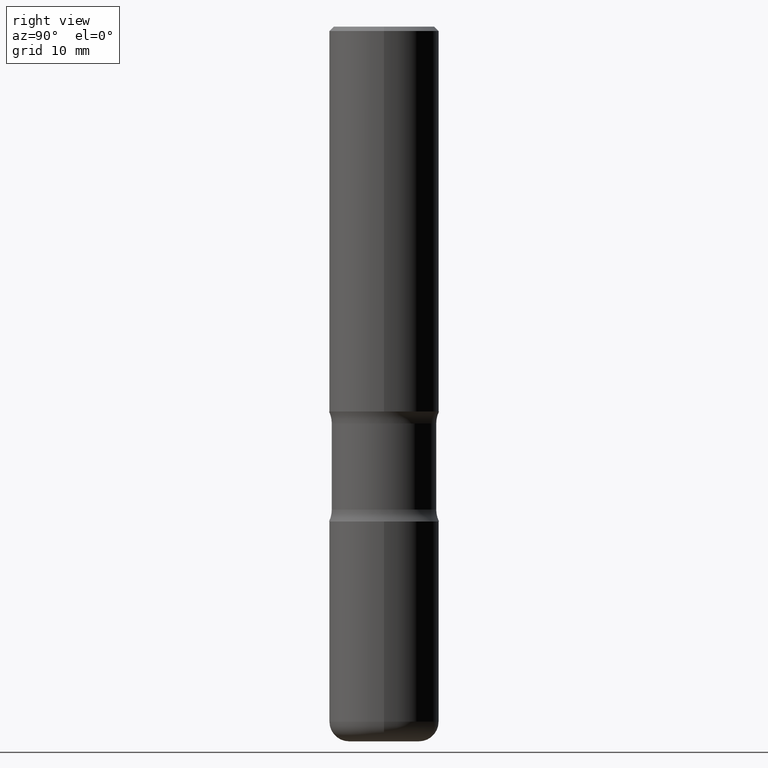
[diagram: clean part render]
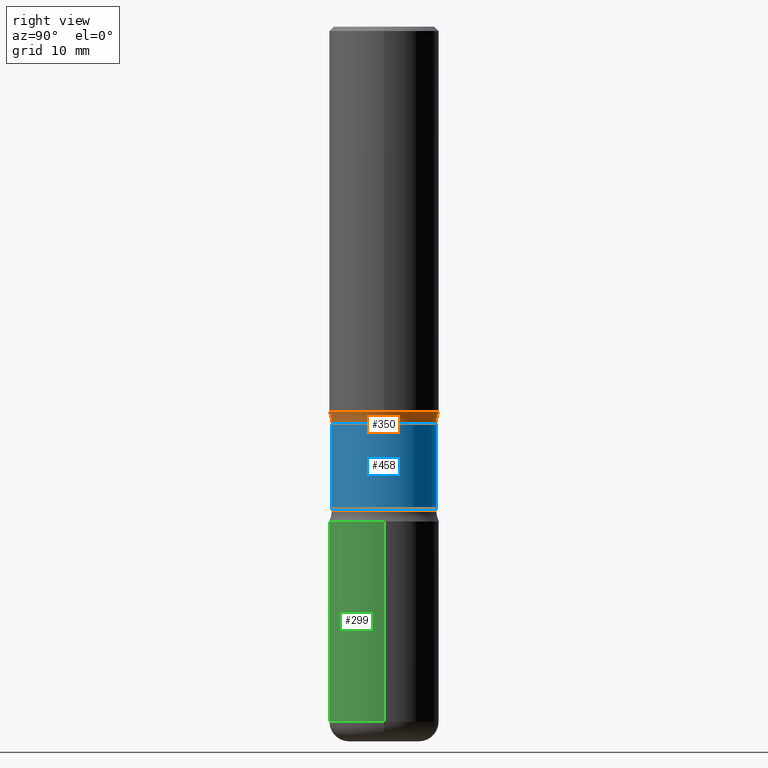
[diagram: same view with three faces highlighted in distinct colors, each labeled with its STEP entity id]
A machine part, right view with three faces highlighted in distinct colors.
Their STEP definitions:

[orange] entity #350 — the highlighted toroidal blend (fillet) surface has major radius 9.2075 mm and minor (blend) radius 3.175 mm.
#3 = TOROIDAL_SURFACE ( 'NONE', #9, 0.3624999999999997113, 0.1250000000000000278 ) ;
#9 = AXIS2_PLACEMENT_3D ( 'NONE', #397, #186, #235 ) ;
#17 = AXIS2_PLACEMENT_3D ( 'NONE', #373, #380, #460 ) ;
#42 = EDGE_LOOP ( 'NONE', ( #183, #495, #270, #410 ) ) ;
#47 = CARTESIAN_POINT ( 'NONE',  ( 1.658453635950530153E-15, 0.2374999999999934108, -1.804486236794262233 ) ) ;
#48 = CIRCLE ( 'NONE', #463, 0.1250000000000000278 ) ;
#68 = VERTEX_POINT ( 'NONE', #155 ) ;
#74 = EDGE_CURVE ( 'NONE', #293, #68, #263, .T. ) ;
#91 = FACE_OUTER_BOUND ( 'NONE', #42, .T. ) ;
#92 = CIRCLE ( 'NONE', #232, 0.2500000000000002220 ) ;
#98 = CIRCLE ( 'NONE', #17, 0.1250000000000000278 ) ;
#106 = DIRECTION ( 'NONE',  ( -1.000000000000000000, 6.982962677686265922E-15, -4.883557194083112340E-29 ) ) ;
#116 = EDGE_CURVE ( 'NONE', #68, #461, #98, .T. ) ;
#118 = DIRECTION ( 'NONE',  ( 2.269921404058617848E-29, -3.742875210225950140E-15, -1.000000000000000000 ) ) ;
#155 = CARTESIAN_POINT ( 'NONE',  ( -1.672246386956765893E-15, -0.2375000000000057621, -1.804486236794260678 ) ) ;
#183 = ORIENTED_EDGE ( 'NONE', *, *, #116, .F. ) ;
#186 = DIRECTION ( 'NONE',  ( 2.269921404058617848E-29, -3.742875210225950140E-15, -1.000000000000000000 ) ) ;
#193 = DIRECTION ( 'NONE',  ( 6.982962677686265133E-15, 1.000000000000000000, -3.278217592397113101E-15 ) ) ;
#228 = CARTESIAN_POINT ( 'NONE',  ( -1.715124499442841278E-15, -0.2500000000000062172, -1.750000000000000444 ) ) ;
#232 = AXIS2_PLACEMENT_3D ( 'NONE', #319, #493, #193 ) ;
#235 = DIRECTION ( 'NONE',  ( 6.982962677686265922E-15, 1.000000000000000000, -3.742875210225950140E-15 ) ) ;
#259 = CARTESIAN_POINT ( 'NONE',  ( 2.531323970661313492E-15, 0.3624999999999934941, -1.804486236794262233 ) ) ;
#263 = CIRCLE ( 'NONE', #349, 0.2374999999999995726 ) ;
#268 = DIRECTION ( 'NONE',  ( -6.982962677686265133E-15, -1.000000000000000000, 0.000000000000000000 ) ) ;
#270 = ORIENTED_EDGE ( 'NONE', *, *, #526, .T. ) ;
#293 = VERTEX_POINT ( 'NONE', #47 ) ;
#319 = CARTESIAN_POINT ( 'NONE',  ( 4.367344111887250941E-29, -5.984395407284106534E-15, -1.750000000000001332 ) ) ;
#329 = CARTESIAN_POINT ( 'NONE',  ( 4.491023587013149728E-29, -6.188330592279845103E-15, -1.804486236794261567 ) ) ;
#336 = DIRECTION ( 'NONE',  ( 6.982962677686266711E-15, 1.000000000000000000, -3.450755360418023049E-15 ) ) ;
#341 = VERTEX_POINT ( 'NONE', #518 ) ;
#349 = AXIS2_PLACEMENT_3D ( 'NONE', #329, #118, #336 ) ;
#350 = ADVANCED_FACE ( 'NONE', ( #91 ), #3, .F. ) ;
#373 = CARTESIAN_POINT ( 'NONE',  ( -2.486930524192133333E-15, -0.3625000000000058731, -1.804486236794259568 ) ) ;
#380 = DIRECTION ( 'NONE',  ( 1.000000000000000000, -6.860497997771530774E-15, 4.837720192625000670E-29 ) ) ;
#397 = CARTESIAN_POINT ( 'NONE',  ( 4.460505784722945109E-29, -6.232033822124849427E-15, -1.804486236794260900 ) ) ;
#410 = ORIENTED_EDGE ( 'NONE', *, *, #484, .T. ) ;
#460 = DIRECTION ( 'NONE',  ( 6.860497997771532351E-15, 1.000000000000000000, 0.000000000000000000 ) ) ;
#461 = VERTEX_POINT ( 'NONE', #228 ) ;
#463 = AXIS2_PLACEMENT_3D ( 'NONE', #259, #106, #268 ) ;
#484 = EDGE_CURVE ( 'NONE', #341, #461, #92, .T. ) ;
#493 = DIRECTION ( 'NONE',  ( 2.269921404058617848E-29, -3.742875210225950140E-15, -1.000000000000000000 ) ) ;
#495 = ORIENTED_EDGE ( 'NONE', *, *, #74, .F. ) ;
#518 = CARTESIAN_POINT ( 'NONE',  ( 1.745740669421611445E-15, 0.2499999999999942546, -1.750000000000001998 ) ) ;
#526 = EDGE_CURVE ( 'NONE', #293, #341, #48, .T. ) ;

[blue] entity #458 — the highlighted cylindrical surface (partial cylindrical patch) has radius 6.0325 mm, axis along (0, -0, -1).
#15 = EDGE_CURVE ( 'NONE', #68, #140, #156, .T. ) ;
#26 = ORIENTED_EDGE ( 'NONE', *, *, #94, .F. ) ;
#47 = CARTESIAN_POINT ( 'NONE',  ( 1.658453635950530153E-15, 0.2374999999999934108, -1.804486236794262233 ) ) ;
#54 = LINE ( 'NONE', #132, #217 ) ;
#68 = VERTEX_POINT ( 'NONE', #155 ) ;
#74 = EDGE_CURVE ( 'NONE', #293, #68, #263, .T. ) ;
#93 = ORIENTED_EDGE ( 'NONE', *, *, #15, .T. ) ;
#94 = EDGE_CURVE ( 'NONE', #120, #140, #337, .T. ) ;
#113 = CARTESIAN_POINT ( 'NONE',  ( -1.629368274470659150E-15, -0.2375000000000113409, -3.250000000000000000 ) ) ;
#118 = DIRECTION ( 'NONE',  ( 2.269921404058617848E-29, -3.742875210225950140E-15, -1.000000000000000000 ) ) ;
#120 = VERTEX_POINT ( 'NONE', #200 ) ;
#124 = AXIS2_PLACEMENT_3D ( 'NONE', #509, #501, #287 ) ;
#132 = CARTESIAN_POINT ( 'NONE',  ( 1.658453635950563680E-15, 0.2374999999999881095, -3.250000000000002220 ) ) ;
#136 = FACE_OUTER_BOUND ( 'NONE', #488, .T. ) ;
#140 = VERTEX_POINT ( 'NONE', #556 ) ;
#155 = CARTESIAN_POINT ( 'NONE',  ( -1.672246386956765893E-15, -0.2375000000000057621, -1.804486236794260678 ) ) ;
#156 = LINE ( 'NONE', #113, #296 ) ;
#179 = DIRECTION ( 'NONE',  ( 6.982962677686265922E-15, 1.000000000000000000, -4.601007147224027577E-15 ) ) ;
#200 = CARTESIAN_POINT ( 'NONE',  ( 1.658453635950540606E-15, 0.2374999999999921618, -2.195513763205742208 ) ) ;
#217 = VECTOR ( 'NONE', #446, 39.37007874015748143 ) ;
#242 = ORIENTED_EDGE ( 'NONE', *, *, #469, .F. ) ;
#257 = AXIS2_PLACEMENT_3D ( 'NONE', #525, #490, #179 ) ;
#263 = CIRCLE ( 'NONE', #349, 0.2374999999999995726 ) ;
#284 = DIRECTION ( 'NONE',  ( 2.269921404058617848E-29, -3.742875210225950140E-15, -1.000000000000000000 ) ) ;
#287 = DIRECTION ( 'NONE',  ( 6.982962677686265133E-15, 1.000000000000000000, -3.450755360418019105E-15 ) ) ;
#293 = VERTEX_POINT ( 'NONE', #47 ) ;
#296 = VECTOR ( 'NONE', #284, 39.37007874015748143 ) ;
#329 = CARTESIAN_POINT ( 'NONE',  ( 4.491023587013149728E-29, -6.188330592279845103E-15, -1.804486236794261567 ) ) ;
#336 = DIRECTION ( 'NONE',  ( 6.982962677686266711E-15, 1.000000000000000000, -3.450755360418023049E-15 ) ) ;
#337 = CIRCLE ( 'NONE', #124, 0.2374999999999998224 ) ;
#343 = ORIENTED_EDGE ( 'NONE', *, *, #74, .T. ) ;
#349 = AXIS2_PLACEMENT_3D ( 'NONE', #329, #118, #336 ) ;
#442 = CYLINDRICAL_SURFACE ( 'NONE', #257, 0.2374999999999997113 ) ;
#446 = DIRECTION ( 'NONE',  ( 2.269921404058617848E-29, -3.742875210225950140E-15, -1.000000000000000000 ) ) ;
#458 = ADVANCED_FACE ( 'NONE', ( #136 ), #442, .T. ) ;
#469 = EDGE_CURVE ( 'NONE', #293, #120, #54, .T. ) ;
#488 = EDGE_LOOP ( 'NONE', ( #343, #93, #26, #242 ) ) ;
#490 = DIRECTION ( 'NONE',  ( 2.269921404058617848E-29, -3.742875210225950140E-15, -1.000000000000000000 ) ) ;
#501 = DIRECTION ( 'NONE',  ( 2.269921404058617848E-29, -3.742875210225950140E-15, -1.000000000000000000 ) ) ;
#509 = CARTESIAN_POINT ( 'NONE',  ( 5.378625338790664161E-29, -7.651897827401345401E-15, -2.195513763205741320 ) ) ;
#525 = CARTESIAN_POINT ( 'NONE',  ( 7.772226217975179114E-29, -1.159870822262303332E-14, -3.250000000000001332 ) ) ;
#556 = CARTESIAN_POINT ( 'NONE',  ( -1.672246386956757412E-15, -0.2375000000000074829, -2.195513763205740432 ) ) ;

[green] entity #299 — the highlighted cylindrical surface (partial cylindrical patch) has radius 6.35 mm, axis along (-0, 0, 1).
#1 = VECTOR ( 'NONE', #81, 39.37007874015748143 ) ;
#64 = DIRECTION ( 'NONE',  ( -2.445468806185136877E-29, 3.491481338843145188E-15, 1.000000000000000000 ) ) ;
#81 = DIRECTION ( 'NONE',  ( -2.445468806185136877E-29, 3.491481338843145188E-15, 1.000000000000000000 ) ) ;
#99 = DIRECTION ( 'NONE',  ( -2.445468806185136597E-29, 3.491481338843145583E-15, 1.000000000000000000 ) ) ;
#108 = EDGE_CURVE ( 'NONE', #233, #327, #377, .T. ) ;
#128 = CYLINDRICAL_SURFACE ( 'NONE', #325, 0.2500000000000003886 ) ;
#172 = DIRECTION ( 'NONE',  ( 1.000000000000000000, -6.982962677686267499E-15, 4.876176775795935793E-29 ) ) ;
#210 = ORIENTED_EDGE ( 'NONE', *, *, #108, .T. ) ;
#218 = CARTESIAN_POINT ( 'NONE',  ( 0.000000000000000000, 0.000000000000000000, 0.000000000000000000 ) ) ;
#221 = FACE_OUTER_BOUND ( 'NONE', #428, .T. ) ;
#233 = VERTEX_POINT ( 'NONE', #477 ) ;
#239 = VERTEX_POINT ( 'NONE', #258 ) ;
#258 = CARTESIAN_POINT ( 'NONE',  ( -0.2500000000000003886, -7.668100182170457762E-15, -2.250000000000001332 ) ) ;
#290 = ORIENTED_EDGE ( 'NONE', *, *, #552, .F. ) ;
#299 = ADVANCED_FACE ( 'NONE', ( #221 ), #128, .T. ) ;
#305 = CIRCLE ( 'NONE', #362, 0.2500000000000003886 ) ;
#309 = DIRECTION ( 'NONE',  ( 1.000000000000000000, -6.982962677686267499E-15, 0.000000000000000000 ) ) ;
#325 = AXIS2_PLACEMENT_3D ( 'NONE', #218, #520, #172 ) ;
#327 = VERTEX_POINT ( 'NONE', #521 ) ;
#340 = CIRCLE ( 'NONE', #481, 0.2500000000000003886 ) ;
#358 = CARTESIAN_POINT ( 'NONE',  ( -0.2500000000000003886, 1.776356839400253226E-15, -1.229733772563728407E-29 ) ) ;
#362 = AXIS2_PLACEMENT_3D ( 'NONE', #366, #99, #500 ) ;
#366 = CARTESIAN_POINT ( 'NONE',  ( 5.502304813916559585E-29, -7.855833012397081604E-15, -2.250000000000001332 ) ) ;
#377 = LINE ( 'NONE', #420, #1 ) ;
#398 = CARTESIAN_POINT ( 'NONE',  ( -0.2500000000000002220, -9.256724191344087541E-15, -3.160000000000000142 ) ) ;
#405 = EDGE_CURVE ( 'NONE', #529, #233, #340, .T. ) ;
#409 = EDGE_CURVE ( 'NONE', #529, #239, #496, .T. ) ;
#420 = CARTESIAN_POINT ( 'NONE',  ( 0.2500000000000003886, -1.745740669421569636E-15, 1.219044193948985910E-29 ) ) ;
#427 = VECTOR ( 'NONE', #64, 39.37007874015748143 ) ;
#428 = EDGE_LOOP ( 'NONE', ( #471, #468, #210, #290 ) ) ;
#448 = DIRECTION ( 'NONE',  ( -2.445468806185136597E-29, 3.491481338843145583E-15, 1.000000000000000000 ) ) ;
#468 = ORIENTED_EDGE ( 'NONE', *, *, #405, .T. ) ;
#471 = ORIENTED_EDGE ( 'NONE', *, *, #409, .F. ) ;
#477 = CARTESIAN_POINT ( 'NONE',  ( 0.2500000000000002220, -1.277882170016590942E-14, -3.160000000000000142 ) ) ;
#481 = AXIS2_PLACEMENT_3D ( 'NONE', #485, #448, #309 ) ;
#485 = CARTESIAN_POINT ( 'NONE',  ( 7.727681427545032274E-29, -1.103308103074433958E-14, -3.160000000000000142 ) ) ;
#496 = LINE ( 'NONE', #358, #427 ) ;
#500 = DIRECTION ( 'NONE',  ( 1.000000000000000000, -6.982962677686263555E-15, 0.000000000000000000 ) ) ;
#520 = DIRECTION ( 'NONE',  ( -2.445468806185136597E-29, 3.491481338843145583E-15, 1.000000000000000000 ) ) ;
#521 = CARTESIAN_POINT ( 'NONE',  ( 0.2500000000000003886, -9.601573681818649859E-15, -2.250000000000001332 ) ) ;
#529 = VERTEX_POINT ( 'NONE', #398 ) ;
#552 = EDGE_CURVE ( 'NONE', #239, #327, #305, .T. ) ;